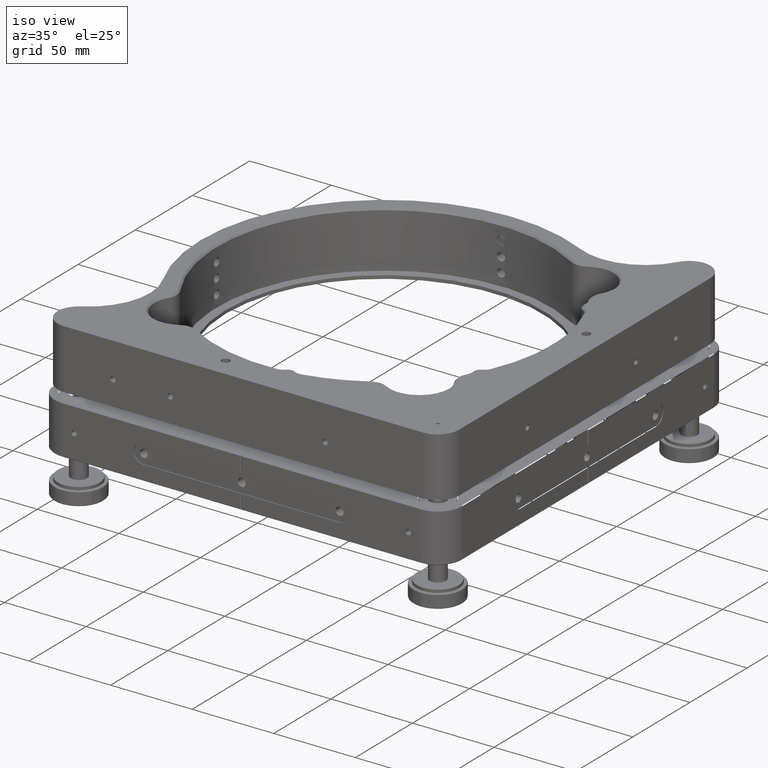
[diagram: clean part render]
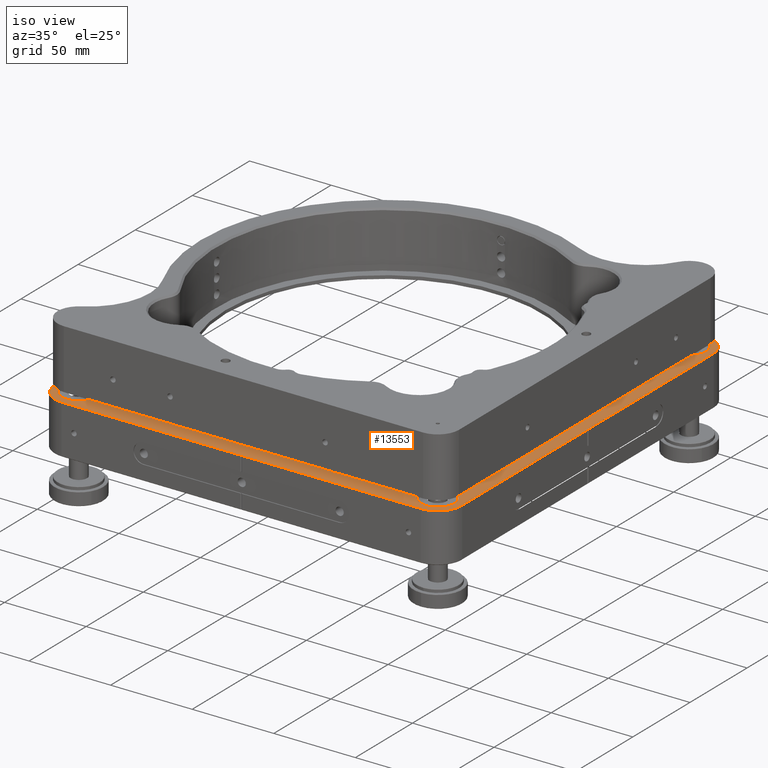
[diagram: same view with one face highlighted and labeled with its STEP entity id]
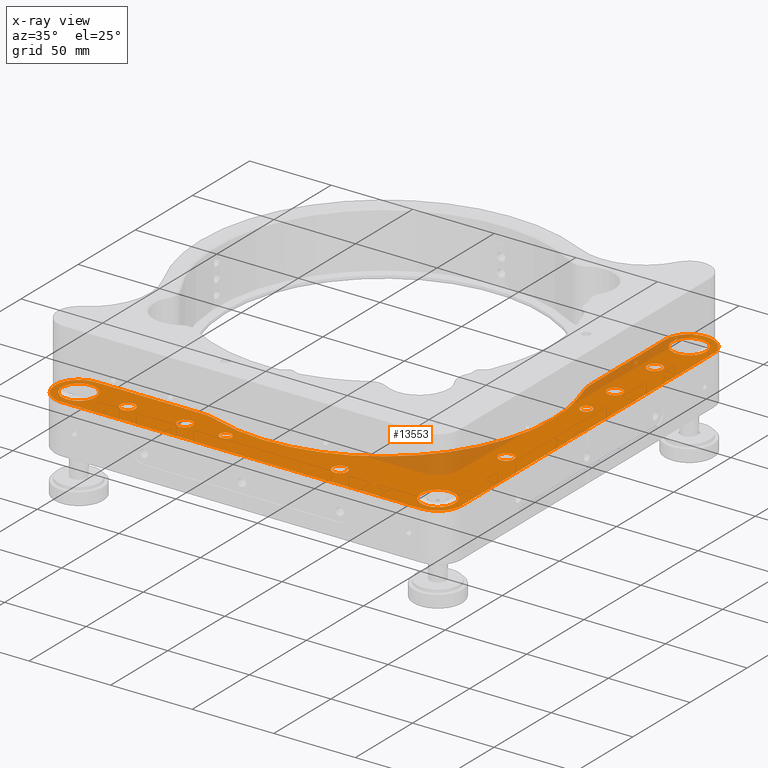
[diagram: x-ray of the same camera — body ghosted, the highlighted face saturated]
A machine part, iso view. The second image highlights one B-rep face of the part: STEP entity #13553.
The next image is the same camera in x-ray: the body ghosted, the highlighted face saturated — about 14% of this face is hidden behind the body in this view.
In plain terms, the highlighted planar face has unit normal (-0, 0, 1).
Its self-contained STEP definition (entity closure, byte-faithful):
#1 = VERTEX_POINT ( 'NONE', #10504 ) ;
#36 = AXIS2_PLACEMENT_3D ( 'NONE', #773, #5155, #4075 ) ;
#38 = AXIS2_PLACEMENT_3D ( 'NONE', #9250, #690, #9456 ) ;
#65 = CARTESIAN_POINT ( 'NONE',  ( -15.00000000000000000, 15.00000000000001421, 15.00000000000000000 ) ) ;
#98 = VERTEX_POINT ( 'NONE', #1162 ) ;
#112 = EDGE_CURVE ( 'NONE', #9079, #1286, #7286, .T. ) ;
#164 = AXIS2_PLACEMENT_3D ( 'NONE', #2809, #4087, #13732 ) ;
#175 = ORIENTED_EDGE ( 'NONE', *, *, #112, .F. ) ;
#194 = AXIS2_PLACEMENT_3D ( 'NONE', #4372, #7676, #2225 ) ;
#219 = EDGE_CURVE ( 'NONE', #9904, #9204, #5491, .T. ) ;
#262 = ORIENTED_EDGE ( 'NONE', *, *, #13666, .T. ) ;
#342 = VERTEX_POINT ( 'NONE', #941 ) ;
#420 = CIRCLE ( 'NONE', #1108, 4.500000000000003553 ) ;
#427 = CARTESIAN_POINT ( 'NONE',  ( -235.0000000000000000, 15.00000000000000000, 15.00000000000000000 ) ) ;
#501 = DIRECTION ( 'NONE',  ( 1.000000000000000000, 0.000000000000000000, 0.000000000000000000 ) ) ;
#514 = EDGE_CURVE ( 'NONE', #6846, #11797, #11297, .T. ) ;
#520 = VECTOR ( 'NONE', #13545, 1000.000000000000000 ) ;
#528 = CARTESIAN_POINT ( 'NONE',  ( -125.2000000000000313, 0.2999999999999669598, 15.00000000000000000 ) ) ;
#530 = CIRCLE ( 'NONE', #8791, 14.70000000000003304 ) ;
#536 = CIRCLE ( 'NONE', #12202, 14.70000000000003304 ) ;
#584 = DIRECTION ( 'NONE',  ( 0.000000000000000000, -0.000000000000000000, 1.000000000000000000 ) ) ;
#671 = DIRECTION ( 'NONE',  ( -0.000000000000000000, 0.000000000000000000, -1.000000000000000000 ) ) ;
#690 = DIRECTION ( 'NONE',  ( -0.000000000000000000, 0.000000000000000000, 1.000000000000000000 ) ) ;
#708 = CARTESIAN_POINT ( 'NONE',  ( -235.0000000000000000, 15.00000000000000000, 15.00000000000000000 ) ) ;
#726 = ORIENTED_EDGE ( 'NONE', *, *, #4829, .T. ) ;
#773 = CARTESIAN_POINT ( 'NONE',  ( -205.0000000000000000, 14.99999999999998579, 15.00000000000000000 ) ) ;
#825 = FACE_BOUND ( 'NONE', #12860, .T. ) ;
#872 = ORIENTED_EDGE ( 'NONE', *, *, #2712, .F. ) ;
#941 = CARTESIAN_POINT ( 'NONE',  ( -15.00000000000002842, 245.2500000000000284, 15.00000000000000000 ) ) ;
#1035 = CARTESIAN_POINT ( 'NONE',  ( -125.0000000000000000, 125.0000000000000000, 15.00000000000000000 ) ) ;
#1108 = AXIS2_PLACEMENT_3D ( 'NONE', #7271, #671, #1964 ) ;
#1153 = DIRECTION ( 'NONE',  ( 0.000000000000000000, 0.000000000000000000, -1.000000000000000000 ) ) ;
#1162 = CARTESIAN_POINT ( 'NONE',  ( -125.0000000000000000, 0.5000000000000004441, 15.00000000000000000 ) ) ;
#1169 = ORIENTED_EDGE ( 'NONE', *, *, #8422, .T. ) ;
#1190 = CARTESIAN_POINT ( 'NONE',  ( -235.0000000000000000, 0.2999999999999669598, 15.00000000000000000 ) ) ;
#1209 = AXIS2_PLACEMENT_3D ( 'NONE', #3326, #5474, #5616 ) ;
#1286 = VERTEX_POINT ( 'NONE', #1813 ) ;
#1289 = CIRCLE ( 'NONE', #7949, 10.24999999999998224 ) ;
#1398 = DIRECTION ( 'NONE',  ( 3.854941057726235139E-16, -1.000000000000000000, 0.000000000000000000 ) ) ;
#1446 = ORIENTED_EDGE ( 'NONE', *, *, #9325, .F. ) ;
#1488 = DIRECTION ( 'NONE',  ( 1.000000000000000000, 0.000000000000000000, 0.000000000000000000 ) ) ;
#1522 = VECTOR ( 'NONE', #8090, 1000.000000000000000 ) ;
#1614 = EDGE_CURVE ( 'NONE', #6927, #7181, #536, .T. ) ;
#1672 = CARTESIAN_POINT ( 'NONE',  ( -15.00000000000000000, 170.0000000000000284, 15.00000000000000000 ) ) ;
#1688 = ORIENTED_EDGE ( 'NONE', *, *, #13851, .F. ) ;
#1698 = CARTESIAN_POINT ( 'NONE',  ( -0.2999999999999669598, 125.2000000000001165, 15.00000000000000000 ) ) ;
#1763 = VECTOR ( 'NONE', #2845, 1000.000000000000000 ) ;
#1813 = CARTESIAN_POINT ( 'NONE',  ( -141.5000000000000284, 15.00000000000001421, 15.00000000000000000 ) ) ;
#1816 = EDGE_CURVE ( 'NONE', #12740, #4894, #2264, .T. ) ;
#1840 = EDGE_CURVE ( 'NONE', #1286, #9079, #5931, .T. ) ;
#1853 = DIRECTION ( 'NONE',  ( 0.000000000000000000, -0.000000000000000000, 1.000000000000000000 ) ) ;
#1913 = ORIENTED_EDGE ( 'NONE', *, *, #1816, .F. ) ;
#1952 = AXIS2_PLACEMENT_3D ( 'NONE', #1035, #7794, #2339 ) ;
#1964 = DIRECTION ( 'NONE',  ( 1.000000000000000000, 0.000000000000000000, 0.000000000000000000 ) ) ;
#1967 = AXIS2_PLACEMENT_3D ( 'NONE', #11686, #1853, #4135 ) ;
#1971 = ORIENTED_EDGE ( 'NONE', *, *, #2782, .T. ) ;
#2022 = CARTESIAN_POINT ( 'NONE',  ( -235.0000000000000000, 15.00000000000000000, 15.00000000000000000 ) ) ;
#2028 = CARTESIAN_POINT ( 'NONE',  ( -205.0000000000000000, 14.99999999999998579, 15.00000000000000000 ) ) ;
#2076 = ORIENTED_EDGE ( 'NONE', *, *, #5215, .T. ) ;
#2126 = FACE_BOUND ( 'NONE', #8944, .T. ) ;
#2158 = DIRECTION ( 'NONE',  ( -0.000000000000000000, 0.000000000000000000, -1.000000000000000000 ) ) ;
#2203 = VECTOR ( 'NONE', #3918, 1000.000000000000114 ) ;
#2225 = DIRECTION ( 'NONE',  ( 1.000000000000000000, 0.000000000000000000, 0.000000000000000000 ) ) ;
#2233 = ORIENTED_EDGE ( 'NONE', *, *, #2930, .T. ) ;
#2248 = ORIENTED_EDGE ( 'NONE', *, *, #4968, .T. ) ;
#2251 = EDGE_CURVE ( 'NONE', #6331, #5461, #13276, .T. ) ;
#2264 = CIRCLE ( 'NONE', #194, 3.499999999999996003 ) ;
#2339 = DIRECTION ( 'NONE',  ( 1.000000000000000000, 5.373780370886529239E-15, 0.000000000000000000 ) ) ;
#2368 = CARTESIAN_POINT ( 'NONE',  ( -124.5000000000000284, 1.387778780781445676E-14, 15.00000000000000000 ) ) ;
#2388 = CARTESIAN_POINT ( 'NONE',  ( -0.2999999999999669598, 124.8000000000000398, 15.00000000000000000 ) ) ;
#2394 = CARTESIAN_POINT ( 'NONE',  ( -19.50000000000000000, 75.00000000000004263, 15.00000000000000000 ) ) ;
#2503 = AXIS2_PLACEMENT_3D ( 'NONE', #11482, #10407, #7091 ) ;
#2515 = DIRECTION ( 'NONE',  ( -1.692413147294448928E-16, 1.000000000000000000, 0.000000000000000000 ) ) ;
#2569 = VERTEX_POINT ( 'NONE', #2388 ) ;
#2611 = VERTEX_POINT ( 'NONE', #9143 ) ;
#2648 = CIRCLE ( 'NONE', #8844, 4.500000000000003553 ) ;
#2712 = EDGE_CURVE ( 'NONE', #2611, #3013, #2648, .T. ) ;
#2775 = CARTESIAN_POINT ( 'NONE',  ( -125.0000000000000000, 125.0000000000000000, 15.00000000000000000 ) ) ;
#2782 = EDGE_CURVE ( 'NONE', #98, #1, #5446, .T. ) ;
#2791 = CARTESIAN_POINT ( 'NONE',  ( -0.2999999999999669598, 235.0000000000000000, 15.00000000000000000 ) ) ;
#2809 = CARTESIAN_POINT ( 'NONE',  ( -15.00000000000000000, 75.00000000000004263, 15.00000000000000000 ) ) ;
#2828 = LINE ( 'NONE', #9367, #520 ) ;
#2845 = DIRECTION ( 'NONE',  ( 1.000000000000000000, 0.000000000000000000, 0.000000000000000000 ) ) ;
#2870 = VERTEX_POINT ( 'NONE', #7601 ) ;
#2918 = EDGE_CURVE ( 'NONE', #342, #8302, #1289, .T. ) ;
#2930 = EDGE_CURVE ( 'NONE', #12735, #7168, #3594, .T. ) ;
#2992 = CARTESIAN_POINT ( 'NONE',  ( -245.2499999999999716, 15.00000000000000000, 15.00000000000000000 ) ) ;
#2997 = CARTESIAN_POINT ( 'NONE',  ( -235.0000000000000000, 29.70000000000003126, 15.00000000000000000 ) ) ;
#3009 = DIRECTION ( 'NONE',  ( 1.000000000000000000, 0.000000000000000000, 0.000000000000000000 ) ) ;
#3013 = VERTEX_POINT ( 'NONE', #11670 ) ;
#3018 = EDGE_LOOP ( 'NONE', ( #10762, #7924 ) ) ;
#3071 = DIRECTION ( 'NONE',  ( -0.000000000000000000, 0.000000000000000000, 1.000000000000000000 ) ) ;
#3194 = ORIENTED_EDGE ( 'NONE', *, *, #7048, .T. ) ;
#3196 = DIRECTION ( 'NONE',  ( 1.000000000000000000, 0.000000000000000000, 0.000000000000000000 ) ) ;
#3199 = EDGE_CURVE ( 'NONE', #3989, #5252, #530, .T. ) ;
#3251 = ORIENTED_EDGE ( 'NONE', *, *, #8040, .T. ) ;
#3326 = CARTESIAN_POINT ( 'NONE',  ( 0.000000000000000000, 170.4312667664021888, 15.00000000000000000 ) ) ;
#3507 = CIRCLE ( 'NONE', #38, 3.499999999999996003 ) ;
#3511 = DIRECTION ( 'NONE',  ( 0.000000000000000000, 0.000000000000000000, 1.000000000000000000 ) ) ;
#3590 = CARTESIAN_POINT ( 'NONE',  ( -1.387778780781445676E-14, 124.5000000000000853, 15.00000000000000000 ) ) ;
#3594 = CIRCLE ( 'NONE', #9309, 10.24999999999998224 ) ;
#3682 = DIRECTION ( 'NONE',  ( -0.000000000000000000, 0.000000000000000000, 1.000000000000000000 ) ) ;
#3705 = CARTESIAN_POINT ( 'NONE',  ( -0.2999999999999669598, 124.5000000000000853, 15.00000000000000000 ) ) ;
#3727 = DIRECTION ( 'NONE',  ( -0.000000000000000000, 0.000000000000000000, 1.000000000000000000 ) ) ;
#3734 = DIRECTION ( 'NONE',  ( -0.000000000000000000, 0.000000000000000000, 1.000000000000000000 ) ) ;
#3773 = CARTESIAN_POINT ( 'NONE',  ( -15.00000000000001421, 249.7000000000000455, 15.00000000000000000 ) ) ;
#3786 = ORIENTED_EDGE ( 'NONE', *, *, #11148, .F. ) ;
#3879 = ORIENTED_EDGE ( 'NONE', *, *, #12680, .F. ) ;
#3904 = CIRCLE ( 'NONE', #11925, 4.500000000000003553 ) ;
#3917 = EDGE_CURVE ( 'NONE', #5321, #5322, #13631, .T. ) ;
#3918 = DIRECTION ( 'NONE',  ( -0.7071067811865434649, -0.7071067811865515695, 0.000000000000000000 ) ) ;
#3981 = DIRECTION ( 'NONE',  ( 0.7071067811865513475, 0.7071067811865436870, 0.000000000000000000 ) ) ;
#3989 = VERTEX_POINT ( 'NONE', #10570 ) ;
#4009 = CIRCLE ( 'NONE', #13880, 14.70000000000003304 ) ;
#4075 = DIRECTION ( 'NONE',  ( 1.000000000000000000, 0.000000000000000000, 0.000000000000000000 ) ) ;
#4087 = DIRECTION ( 'NONE',  ( -0.000000000000000000, 0.000000000000000000, 1.000000000000000000 ) ) ;
#4121 = DIRECTION ( 'NONE',  ( -0.000000000000000000, 0.000000000000000000, 1.000000000000000000 ) ) ;
#4127 = FACE_BOUND ( 'NONE', #13064, .T. ) ;
#4135 = DIRECTION ( 'NONE',  ( 3.854941057726235139E-16, -1.000000000000000000, 0.000000000000000000 ) ) ;
#4200 = VERTEX_POINT ( 'NONE', #2997 ) ;
#4219 = CARTESIAN_POINT ( 'NONE',  ( -165.4999999999999716, 14.99999999999998579, 15.00000000000000000 ) ) ;
#4253 = VECTOR ( 'NONE', #13711, 1000.000000000000000 ) ;
#4293 = EDGE_LOOP ( 'NONE', ( #2248, #3194 ) ) ;
#4362 = CIRCLE ( 'NONE', #11476, 10.24999999999998224 ) ;
#4372 = CARTESIAN_POINT ( 'NONE',  ( -15.00000000000000000, 145.0000000000000568, 15.00000000000000000 ) ) ;
#4456 = LINE ( 'NONE', #7543, #6621 ) ;
#4470 = EDGE_CURVE ( 'NONE', #9091, #2569, #12482, .T. ) ;
#4554 = AXIS2_PLACEMENT_3D ( 'NONE', #6452, #2158, #11707 ) ;
#4565 = CARTESIAN_POINT ( 'NONE',  ( -29.70000000000000284, 170.4312667664021888, 15.00000000000000000 ) ) ;
#4593 = EDGE_CURVE ( 'NONE', #6395, #9091, #13764, .T. ) ;
#4636 = CARTESIAN_POINT ( 'NONE',  ( -170.4312667664022172, 29.70000000000003126, 15.00000000000000000 ) ) ;
#4684 = ORIENTED_EDGE ( 'NONE', *, *, #4593, .F. ) ;
#4726 = VECTOR ( 'NONE', #4729, 1000.000000000000000 ) ;
#4729 = DIRECTION ( 'NONE',  ( 0.7071067811865495711, -0.7071067811865454633, 0.000000000000000000 ) ) ;
#4826 = ORIENTED_EDGE ( 'NONE', *, *, #3917, .T. ) ;
#4829 = EDGE_CURVE ( 'NONE', #5252, #2569, #5855, .T. ) ;
#4894 = VERTEX_POINT ( 'NONE', #7390 ) ;
#4922 = CARTESIAN_POINT ( 'NONE',  ( -15.00000000000001421, 235.0000000000000000, 15.00000000000000000 ) ) ;
#4928 = ORIENTED_EDGE ( 'NONE', *, *, #12144, .T. ) ;
#4968 = EDGE_CURVE ( 'NONE', #2870, #10558, #10293, .T. ) ;
#5011 = DIRECTION ( 'NONE',  ( 1.000000000000000000, 0.000000000000000000, 0.000000000000000000 ) ) ;
#5055 = LINE ( 'NONE', #9666, #9319 ) ;
#5067 = EDGE_LOOP ( 'NONE', ( #10845, #3786 ) ) ;
#5091 = VECTOR ( 'NONE', #6855, 1000.000000000000000 ) ;
#5118 = EDGE_CURVE ( 'NONE', #10360, #5495, #5456, .T. ) ;
#5155 = DIRECTION ( 'NONE',  ( -0.000000000000000000, 0.000000000000000000, -1.000000000000000000 ) ) ;
#5207 = FACE_BOUND ( 'NONE', #11292, .T. ) ;
#5215 = EDGE_CURVE ( 'NONE', #4200, #5321, #11434, .T. ) ;
#5227 = AXIS2_PLACEMENT_3D ( 'NONE', #427, #3734, #5011 ) ;
#5252 = VERTEX_POINT ( 'NONE', #10477 ) ;
#5319 = DIRECTION ( 'NONE',  ( 1.000000000000000000, 0.000000000000000000, 0.000000000000000000 ) ) ;
#5321 = VERTEX_POINT ( 'NONE', #7436 ) ;
#5322 = VERTEX_POINT ( 'NONE', #1190 ) ;
#5333 = CARTESIAN_POINT ( 'NONE',  ( -29.70000000000003126, 235.0000000000000000, 15.00000000000000000 ) ) ;
#5351 = PLANE ( 'NONE',  #11300 ) ;
#5405 = CARTESIAN_POINT ( 'NONE',  ( -224.7500000000000000, 15.00000000000000178, 15.00000000000000000 ) ) ;
#5446 = LINE ( 'NONE', #2368, #6769 ) ;
#5456 = CIRCLE ( 'NONE', #7291, 4.500000000000003553 ) ;
#5461 = VERTEX_POINT ( 'NONE', #10247 ) ;
#5474 = DIRECTION ( 'NONE',  ( -0.000000000000000000, 0.000000000000000000, 1.000000000000000000 ) ) ;
#5491 = CIRCLE ( 'NONE', #9370, 4.500000000000003553 ) ;
#5494 = LINE ( 'NONE', #4565, #5091 ) ;
#5495 = VERTEX_POINT ( 'NONE', #10315 ) ;
#5519 = AXIS2_PLACEMENT_3D ( 'NONE', #10048, #3511, #1488 ) ;
#5527 = DIRECTION ( 'NONE',  ( 0.000000000000000000, 0.000000000000000000, -1.000000000000000000 ) ) ;
#5554 = VERTEX_POINT ( 'NONE', #4636 ) ;
#5577 = CIRCLE ( 'NONE', #11074, 10.24999999999999112 ) ;
#5616 = DIRECTION ( 'NONE',  ( 1.000000000000000000, 0.000000000000000000, 0.000000000000000000 ) ) ;
#5635 = CIRCLE ( 'NONE', #14117, 29.70000000000003126 ) ;
#5643 = VERTEX_POINT ( 'NONE', #8299 ) ;
#5721 = ORIENTED_EDGE ( 'NONE', *, *, #11548, .T. ) ;
#5745 = CARTESIAN_POINT ( 'NONE',  ( -75.00000000000000000, 15.00000000000001421, 15.00000000000000000 ) ) ;
#5841 = CIRCLE ( 'NONE', #11812, 103.2999999999999687 ) ;
#5855 = LINE ( 'NONE', #3705, #1522 ) ;
#5931 = CIRCLE ( 'NONE', #2503, 3.500000000000003109 ) ;
#5932 = CARTESIAN_POINT ( 'NONE',  ( -27.91353383458650228, 160.2860891501454432, 15.00000000000000000 ) ) ;
#5934 = DIRECTION ( 'NONE',  ( -0.000000000000000000, 0.000000000000000000, 1.000000000000000000 ) ) ;
#5960 = CARTESIAN_POINT ( 'NONE',  ( -15.00000000000001421, 235.0000000000000000, 15.00000000000000000 ) ) ;
#5990 = EDGE_LOOP ( 'NONE', ( #1913, #3879 ) ) ;
#5992 = DIRECTION ( 'NONE',  ( -1.692413147294448928E-16, 1.000000000000000000, 0.000000000000000000 ) ) ;
#6062 = CARTESIAN_POINT ( 'NONE',  ( -15.00000000000002665, 235.0000000000000284, 15.00000000000000000 ) ) ;
#6067 = LINE ( 'NONE', #10458, #1763 ) ;
#6069 = ORIENTED_EDGE ( 'NONE', *, *, #12490, .T. ) ;
#6084 = FACE_BOUND ( 'NONE', #5990, .T. ) ;
#6194 = ORIENTED_EDGE ( 'NONE', *, *, #1614, .T. ) ;
#6266 = ORIENTED_EDGE ( 'NONE', *, *, #7575, .T. ) ;
#6331 = VERTEX_POINT ( 'NONE', #8539 ) ;
#6358 = ORIENTED_EDGE ( 'NONE', *, *, #8088, .T. ) ;
#6387 = DIRECTION ( 'NONE',  ( -1.000000000000000000, 0.000000000000000000, 0.000000000000000000 ) ) ;
#6393 = DIRECTION ( 'NONE',  ( -0.000000000000000000, 0.000000000000000000, -1.000000000000000000 ) ) ;
#6395 = VERTEX_POINT ( 'NONE', #1698 ) ;
#6440 = EDGE_CURVE ( 'NONE', #5322, #6957, #6067, .T. ) ;
#6452 = CARTESIAN_POINT ( 'NONE',  ( -169.9999999999999716, 14.99999999999998579, 15.00000000000000000 ) ) ;
#6490 = EDGE_CURVE ( 'NONE', #3013, #2611, #10911, .T. ) ;
#6544 = ORIENTED_EDGE ( 'NONE', *, *, #7688, .T. ) ;
#6591 = CARTESIAN_POINT ( 'NONE',  ( -21.70000000000002416, 125.0000000000000000, 15.00000000000000000 ) ) ;
#6621 = VECTOR ( 'NONE', #8848, 1000.000000000000000 ) ;
#6669 = DIRECTION ( 'NONE',  ( -1.000000000000000000, 0.000000000000000000, 0.000000000000000000 ) ) ;
#6769 = VECTOR ( 'NONE', #14214, 1000.000000000000000 ) ;
#6846 = VERTEX_POINT ( 'NONE', #7132 ) ;
#6855 = DIRECTION ( 'NONE',  ( 3.257677454484833774E-16, -1.000000000000000000, 0.000000000000000000 ) ) ;
#6856 = CARTESIAN_POINT ( 'NONE',  ( -4.750000000000007994, 15.00000000000001421, 15.00000000000000000 ) ) ;
#6867 = CARTESIAN_POINT ( 'NONE',  ( -160.2860891501454716, 27.91353383458650228, 15.00000000000000000 ) ) ;
#6877 = DIRECTION ( 'NONE',  ( -1.000000000000000000, 0.000000000000000000, 0.000000000000000000 ) ) ;
#6909 = VERTEX_POINT ( 'NONE', #6856 ) ;
#6927 = VERTEX_POINT ( 'NONE', #3773 ) ;
#6944 = CIRCLE ( 'NONE', #11762, 4.500000000000003553 ) ;
#6957 = VERTEX_POINT ( 'NONE', #528 ) ;
#7048 = EDGE_CURVE ( 'NONE', #10558, #2870, #420, .T. ) ;
#7071 = AXIS2_PLACEMENT_3D ( 'NONE', #1672, #584, #1398 ) ;
#7091 = DIRECTION ( 'NONE',  ( 1.000000000000000000, 0.000000000000000000, 0.000000000000000000 ) ) ;
#7098 = ORIENTED_EDGE ( 'NONE', *, *, #5118, .T. ) ;
#7132 = CARTESIAN_POINT ( 'NONE',  ( -29.70000000000000284, 170.4312667664021888, 15.00000000000000000 ) ) ;
#7168 = VERTEX_POINT ( 'NONE', #5405 ) ;
#7181 = VERTEX_POINT ( 'NONE', #5333 ) ;
#7271 = CARTESIAN_POINT ( 'NONE',  ( -169.9999999999999716, 14.99999999999998579, 15.00000000000000000 ) ) ;
#7286 = CIRCLE ( 'NONE', #12796, 3.500000000000003109 ) ;
#7288 = ORIENTED_EDGE ( 'NONE', *, *, #514, .T. ) ;
#7291 = AXIS2_PLACEMENT_3D ( 'NONE', #12062, #5527, #6669 ) ;
#7300 = DIRECTION ( 'NONE',  ( 1.000000000000000000, 0.000000000000000000, 0.000000000000000000 ) ) ;
#7352 = CARTESIAN_POINT ( 'NONE',  ( -15.00000000000000000, 75.00000000000004263, 15.00000000000000000 ) ) ;
#7361 = CARTESIAN_POINT ( 'NONE',  ( -1.387778780781445676E-14, 125.5000000000000568, 15.00000000000000000 ) ) ;
#7390 = CARTESIAN_POINT ( 'NONE',  ( -18.49999999999999645, 145.0000000000000568, 15.00000000000000000 ) ) ;
#7431 = FACE_BOUND ( 'NONE', #8034, .T. ) ;
#7436 = CARTESIAN_POINT ( 'NONE',  ( -249.7000000000000455, 15.00000000000001421, 15.00000000000000000 ) ) ;
#7543 = CARTESIAN_POINT ( 'NONE',  ( -235.0000000000000000, 29.70000000000003126, 15.00000000000000000 ) ) ;
#7575 = EDGE_CURVE ( 'NONE', #9508, #8476, #5841, .T. ) ;
#7579 = FACE_BOUND ( 'NONE', #5067, .T. ) ;
#7601 = CARTESIAN_POINT ( 'NONE',  ( -174.5000000000000000, 14.99999999999998579, 15.00000000000000000 ) ) ;
#7676 = DIRECTION ( 'NONE',  ( -0.000000000000000000, 0.000000000000000000, 1.000000000000000000 ) ) ;
#7688 = EDGE_CURVE ( 'NONE', #11797, #9508, #7922, .T. ) ;
#7794 = DIRECTION ( 'NONE',  ( 0.000000000000000000, -0.000000000000000000, -1.000000000000000000 ) ) ;
#7922 = CIRCLE ( 'NONE', #1952, 103.2999999999999687 ) ;
#7924 = ORIENTED_EDGE ( 'NONE', *, *, #2251, .F. ) ;
#7949 = AXIS2_PLACEMENT_3D ( 'NONE', #10520, #3727, #2515 ) ;
#8034 = EDGE_LOOP ( 'NONE', ( #2233, #4928 ) ) ;
#8040 = EDGE_CURVE ( 'NONE', #6395, #11510, #12630, .T. ) ;
#8044 = CARTESIAN_POINT ( 'NONE',  ( -235.0000000000000000, 15.00000000000000000, 15.00000000000000000 ) ) ;
#8071 = CIRCLE ( 'NONE', #11032, 10.24999999999998224 ) ;
#8088 = EDGE_CURVE ( 'NONE', #8476, #5554, #5635, .T. ) ;
#8090 = DIRECTION ( 'NONE',  ( -5.551115123125782702E-17, 1.000000000000000000, 0.000000000000000000 ) ) ;
#8101 = DIRECTION ( 'NONE',  ( 3.854941057726235139E-16, -1.000000000000000000, 0.000000000000000000 ) ) ;
#8118 = DIRECTION ( 'NONE',  ( -1.000000000000000000, 0.000000000000000000, 0.000000000000000000 ) ) ;
#8166 = EDGE_CURVE ( 'NONE', #5461, #6331, #8621, .T. ) ;
#8272 = ORIENTED_EDGE ( 'NONE', *, *, #10273, .T. ) ;
#8283 = CIRCLE ( 'NONE', #5519, 10.24999999999999112 ) ;
#8299 = CARTESIAN_POINT ( 'NONE',  ( -25.24999999999999289, 15.00000000000001421, 15.00000000000000000 ) ) ;
#8302 = VERTEX_POINT ( 'NONE', #10956 ) ;
#8422 = EDGE_CURVE ( 'NONE', #11510, #6927, #4009, .T. ) ;
#8476 = VERTEX_POINT ( 'NONE', #6867 ) ;
#8491 = EDGE_LOOP ( 'NONE', ( #11168, #1688 ) ) ;
#8518 = DIRECTION ( 'NONE',  ( -3.854941057726235139E-16, 1.000000000000000000, 0.000000000000000000 ) ) ;
#8539 = CARTESIAN_POINT ( 'NONE',  ( -10.49999999999999289, 170.0000000000000284, 15.00000000000000000 ) ) ;
#8583 = EDGE_CURVE ( 'NONE', #6957, #98, #5055, .T. ) ;
#8617 = DIRECTION ( 'NONE',  ( 0.000000000000000000, -0.000000000000000000, 1.000000000000000000 ) ) ;
#8621 = CIRCLE ( 'NONE', #1967, 4.500000000000003553 ) ;
#8778 = ORIENTED_EDGE ( 'NONE', *, *, #8583, .T. ) ;
#8791 = AXIS2_PLACEMENT_3D ( 'NONE', #13041, #11875, #3196 ) ;
#8809 = AXIS2_PLACEMENT_3D ( 'NONE', #708, #12849, #3009 ) ;
#8844 = AXIS2_PLACEMENT_3D ( 'NONE', #11696, #8617, #13001 ) ;
#8848 = DIRECTION ( 'NONE',  ( -1.000000000000000000, 0.000000000000000000, -0.000000000000000000 ) ) ;
#8944 = EDGE_LOOP ( 'NONE', ( #5721, #6069 ) ) ;
#8959 = CARTESIAN_POINT ( 'NONE',  ( -209.5000000000000000, 14.99999999999998579, 15.00000000000000000 ) ) ;
#9079 = VERTEX_POINT ( 'NONE', #10443 ) ;
#9091 = VERTEX_POINT ( 'NONE', #12666 ) ;
#9143 = CARTESIAN_POINT ( 'NONE',  ( -10.49999999999999289, 205.0000000000000568, 15.00000000000000000 ) ) ;
#9204 = VERTEX_POINT ( 'NONE', #2394 ) ;
#9250 = CARTESIAN_POINT ( 'NONE',  ( -15.00000000000000000, 145.0000000000000568, 15.00000000000000000 ) ) ;
#9309 = AXIS2_PLACEMENT_3D ( 'NONE', #8044, #12489, #6877 ) ;
#9310 = DIRECTION ( 'NONE',  ( 1.000000000000000000, 0.000000000000000000, 0.000000000000000000 ) ) ;
#9319 = VECTOR ( 'NONE', #3981, 1000.000000000000000 ) ;
#9325 = EDGE_CURVE ( 'NONE', #9204, #9904, #10264, .T. ) ;
#9367 = CARTESIAN_POINT ( 'NONE',  ( -15.00000000000000000, 0.2999999999999669598, 15.00000000000000000 ) ) ;
#9370 = AXIS2_PLACEMENT_3D ( 'NONE', #7352, #4121, #8518 ) ;
#9456 = DIRECTION ( 'NONE',  ( 1.000000000000000000, 0.000000000000000000, 0.000000000000000000 ) ) ;
#9493 = ORIENTED_EDGE ( 'NONE', *, *, #1840, .F. ) ;
#9508 = VERTEX_POINT ( 'NONE', #6591 ) ;
#9597 = FACE_BOUND ( 'NONE', #3018, .T. ) ;
#9666 = CARTESIAN_POINT ( 'NONE',  ( -125.5000000000000000, 1.387778780781445676E-14, 15.00000000000000000 ) ) ;
#9741 = DIRECTION ( 'NONE',  ( -0.000000000000000000, 0.000000000000000000, 1.000000000000000000 ) ) ;
#9870 = VERTEX_POINT ( 'NONE', #8959 ) ;
#9904 = VERTEX_POINT ( 'NONE', #13116 ) ;
#9921 = ORIENTED_EDGE ( 'NONE', *, *, #6440, .T. ) ;
#9926 = EDGE_LOOP ( 'NONE', ( #1971, #10095, #13651, #726, #11245, #4684, #3251, #1169, #6194, #262, #7288, #6544, #6266, #6358, #8272, #2076, #4826, #9921, #8778 ) ) ;
#10048 = CARTESIAN_POINT ( 'NONE',  ( -15.00000000000000000, 15.00000000000001421, 15.00000000000000000 ) ) ;
#10095 = ORIENTED_EDGE ( 'NONE', *, *, #13709, .T. ) ;
#10211 = CARTESIAN_POINT ( 'NONE',  ( -70.50000000000000000, 15.00000000000001421, 15.00000000000000000 ) ) ;
#10247 = CARTESIAN_POINT ( 'NONE',  ( -19.50000000000000355, 170.0000000000000284, 15.00000000000000000 ) ) ;
#10264 = CIRCLE ( 'NONE', #164, 4.500000000000003553 ) ;
#10273 = EDGE_CURVE ( 'NONE', #5554, #4200, #4456, .T. ) ;
#10275 = DIRECTION ( 'NONE',  ( 0.000000000000000000, 0.000000000000000000, -1.000000000000000000 ) ) ;
#10290 = ORIENTED_EDGE ( 'NONE', *, *, #14069, .T. ) ;
#10293 = CIRCLE ( 'NONE', #4554, 4.500000000000003553 ) ;
#10315 = CARTESIAN_POINT ( 'NONE',  ( -79.50000000000000000, 15.00000000000001421, 15.00000000000000000 ) ) ;
#10351 = DIRECTION ( 'NONE',  ( -0.000000000000000000, 0.000000000000000000, 1.000000000000000000 ) ) ;
#10360 = VERTEX_POINT ( 'NONE', #10211 ) ;
#10407 = DIRECTION ( 'NONE',  ( -0.000000000000000000, 0.000000000000000000, 1.000000000000000000 ) ) ;
#10443 = CARTESIAN_POINT ( 'NONE',  ( -148.5000000000000284, 15.00000000000001421, 15.00000000000000000 ) ) ;
#10449 = ORIENTED_EDGE ( 'NONE', *, *, #219, .F. ) ;
#10454 = DIRECTION ( 'NONE',  ( 0.000000000000000000, -0.000000000000000000, -1.000000000000000000 ) ) ;
#10458 = CARTESIAN_POINT ( 'NONE',  ( -125.5000000000000000, 0.2999999999999669598, 15.00000000000000000 ) ) ;
#10477 = CARTESIAN_POINT ( 'NONE',  ( -0.2999999999999669598, 15.00000000000001421, 15.00000000000000000 ) ) ;
#10504 = CARTESIAN_POINT ( 'NONE',  ( -124.7999999999999829, 0.2999999999999669598, 15.00000000000000000 ) ) ;
#10516 = DIRECTION ( 'NONE',  ( -0.000000000000000000, 0.000000000000000000, 1.000000000000000000 ) ) ;
#10520 = CARTESIAN_POINT ( 'NONE',  ( -15.00000000000002665, 235.0000000000000284, 15.00000000000000000 ) ) ;
#10558 = VERTEX_POINT ( 'NONE', #4219 ) ;
#10570 = CARTESIAN_POINT ( 'NONE',  ( -15.00000000000000000, 0.2999999999999808376, 15.00000000000000000 ) ) ;
#10762 = ORIENTED_EDGE ( 'NONE', *, *, #8166, .F. ) ;
#10765 = CARTESIAN_POINT ( 'NONE',  ( -0.2999999999999808376, 235.0000000000000000, 15.00000000000000000 ) ) ;
#10792 = CARTESIAN_POINT ( 'NONE',  ( -125.0000000000000000, 125.0000000000000000, 15.00000000000000000 ) ) ;
#10845 = ORIENTED_EDGE ( 'NONE', *, *, #2918, .F. ) ;
#10867 = FACE_BOUND ( 'NONE', #11513, .T. ) ;
#10911 = CIRCLE ( 'NONE', #14140, 4.500000000000003553 ) ;
#10956 = CARTESIAN_POINT ( 'NONE',  ( -15.00000000000002487, 224.7500000000000568, 15.00000000000000000 ) ) ;
#11032 = AXIS2_PLACEMENT_3D ( 'NONE', #2022, #1153, #6387 ) ;
#11074 = AXIS2_PLACEMENT_3D ( 'NONE', #65, #13292, #13220 ) ;
#11148 = EDGE_CURVE ( 'NONE', #8302, #342, #4362, .T. ) ;
#11168 = ORIENTED_EDGE ( 'NONE', *, *, #11799, .F. ) ;
#11245 = ORIENTED_EDGE ( 'NONE', *, *, #4470, .F. ) ;
#11292 = EDGE_LOOP ( 'NONE', ( #13822, #872 ) ) ;
#11297 = CIRCLE ( 'NONE', #1209, 29.70000000000003482 ) ;
#11300 = AXIS2_PLACEMENT_3D ( 'NONE', #10792, #9741, #14118 ) ;
#11404 = CARTESIAN_POINT ( 'NONE',  ( -11.50000000000000355, 145.0000000000000568, 15.00000000000000000 ) ) ;
#11428 = DIRECTION ( 'NONE',  ( 1.000000000000000000, 0.000000000000000000, 0.000000000000000000 ) ) ;
#11431 = CARTESIAN_POINT ( 'NONE',  ( -200.4999999999999716, 14.99999999999998579, 15.00000000000000000 ) ) ;
#11434 = CIRCLE ( 'NONE', #5227, 14.70000000000004547 ) ;
#11476 = AXIS2_PLACEMENT_3D ( 'NONE', #6062, #10516, #5992 ) ;
#11482 = CARTESIAN_POINT ( 'NONE',  ( -145.0000000000000284, 15.00000000000001421, 15.00000000000000000 ) ) ;
#11510 = VERTEX_POINT ( 'NONE', #10765 ) ;
#11513 = EDGE_LOOP ( 'NONE', ( #9493, #175 ) ) ;
#11548 = EDGE_CURVE ( 'NONE', #9870, #12875, #3904, .T. ) ;
#11670 = CARTESIAN_POINT ( 'NONE',  ( -19.50000000000000355, 205.0000000000000568, 15.00000000000000000 ) ) ;
#11686 = CARTESIAN_POINT ( 'NONE',  ( -15.00000000000000000, 170.0000000000000284, 15.00000000000000000 ) ) ;
#11696 = CARTESIAN_POINT ( 'NONE',  ( -15.00000000000000000, 205.0000000000000568, 15.00000000000000000 ) ) ;
#11707 = DIRECTION ( 'NONE',  ( 1.000000000000000000, 0.000000000000000000, 0.000000000000000000 ) ) ;
#11762 = AXIS2_PLACEMENT_3D ( 'NONE', #5745, #10275, #8118 ) ;
#11797 = VERTEX_POINT ( 'NONE', #5932 ) ;
#11799 = EDGE_CURVE ( 'NONE', #6909, #5643, #8283, .T. ) ;
#11812 = AXIS2_PLACEMENT_3D ( 'NONE', #2775, #10454, #13824 ) ;
#11813 = FACE_OUTER_BOUND ( 'NONE', #9926, .T. ) ;
#11875 = DIRECTION ( 'NONE',  ( -0.000000000000000000, 0.000000000000000000, 1.000000000000000000 ) ) ;
#11897 = CARTESIAN_POINT ( 'NONE',  ( -170.4312667664022172, 0.000000000000000000, 15.00000000000000000 ) ) ;
#11925 = AXIS2_PLACEMENT_3D ( 'NONE', #2028, #6393, #5319 ) ;
#12062 = CARTESIAN_POINT ( 'NONE',  ( -75.00000000000000000, 15.00000000000001421, 15.00000000000000000 ) ) ;
#12144 = EDGE_CURVE ( 'NONE', #7168, #12735, #8071, .T. ) ;
#12202 = AXIS2_PLACEMENT_3D ( 'NONE', #5960, #10351, #501 ) ;
#12482 = LINE ( 'NONE', #3590, #4726 ) ;
#12489 = DIRECTION ( 'NONE',  ( 0.000000000000000000, 0.000000000000000000, -1.000000000000000000 ) ) ;
#12490 = EDGE_CURVE ( 'NONE', #12875, #9870, #13120, .T. ) ;
#12630 = LINE ( 'NONE', #2791, #4253 ) ;
#12666 = CARTESIAN_POINT ( 'NONE',  ( -0.5000000000000004441, 125.0000000000000568, 15.00000000000000000 ) ) ;
#12680 = EDGE_CURVE ( 'NONE', #4894, #12740, #3507, .T. ) ;
#12735 = VERTEX_POINT ( 'NONE', #2992 ) ;
#12740 = VERTEX_POINT ( 'NONE', #11404 ) ;
#12796 = AXIS2_PLACEMENT_3D ( 'NONE', #13660, #3682, #11428 ) ;
#12849 = DIRECTION ( 'NONE',  ( -0.000000000000000000, 0.000000000000000000, 1.000000000000000000 ) ) ;
#12860 = EDGE_LOOP ( 'NONE', ( #1446, #10449 ) ) ;
#12875 = VERTEX_POINT ( 'NONE', #11431 ) ;
#13001 = DIRECTION ( 'NONE',  ( 3.854941057726235139E-16, -1.000000000000000000, 0.000000000000000000 ) ) ;
#13041 = CARTESIAN_POINT ( 'NONE',  ( -15.00000000000000000, 15.00000000000001421, 15.00000000000000000 ) ) ;
#13046 = FACE_BOUND ( 'NONE', #8491, .T. ) ;
#13064 = EDGE_LOOP ( 'NONE', ( #10290, #7098 ) ) ;
#13116 = CARTESIAN_POINT ( 'NONE',  ( -10.49999999999999822, 75.00000000000004263, 15.00000000000000000 ) ) ;
#13120 = CIRCLE ( 'NONE', #36, 4.500000000000003553 ) ;
#13220 = DIRECTION ( 'NONE',  ( 1.000000000000000000, 0.000000000000000000, 0.000000000000000000 ) ) ;
#13276 = CIRCLE ( 'NONE', #7071, 4.500000000000003553 ) ;
#13292 = DIRECTION ( 'NONE',  ( 0.000000000000000000, 0.000000000000000000, 1.000000000000000000 ) ) ;
#13545 = DIRECTION ( 'NONE',  ( 1.000000000000000000, 0.000000000000000000, 0.000000000000000000 ) ) ;
#13553 = ADVANCED_FACE ( 'NONE', ( #6084, #10867, #825, #5207, #9597, #7579, #13046, #2126, #13970, #4127, #7431, #11813 ), #5351, .T. ) ;
#13631 = CIRCLE ( 'NONE', #8809, 14.70000000000004547 ) ;
#13651 = ORIENTED_EDGE ( 'NONE', *, *, #3199, .T. ) ;
#13660 = CARTESIAN_POINT ( 'NONE',  ( -145.0000000000000284, 15.00000000000001421, 15.00000000000000000 ) ) ;
#13666 = EDGE_CURVE ( 'NONE', #7181, #6846, #5494, .T. ) ;
#13709 = EDGE_CURVE ( 'NONE', #1, #3989, #2828, .T. ) ;
#13711 = DIRECTION ( 'NONE',  ( -5.551115123125782702E-17, 1.000000000000000000, 0.000000000000000000 ) ) ;
#13732 = DIRECTION ( 'NONE',  ( -3.854941057726235139E-16, 1.000000000000000000, 0.000000000000000000 ) ) ;
#13763 = CARTESIAN_POINT ( 'NONE',  ( -15.00000000000000000, 205.0000000000000568, 15.00000000000000000 ) ) ;
#13764 = LINE ( 'NONE', #7361, #2203 ) ;
#13822 = ORIENTED_EDGE ( 'NONE', *, *, #6490, .F. ) ;
#13824 = DIRECTION ( 'NONE',  ( 1.000000000000000000, 0.000000000000000000, 0.000000000000000000 ) ) ;
#13851 = EDGE_CURVE ( 'NONE', #5643, #6909, #5577, .T. ) ;
#13880 = AXIS2_PLACEMENT_3D ( 'NONE', #4922, #5934, #9310 ) ;
#13898 = DIRECTION ( 'NONE',  ( 0.000000000000000000, -0.000000000000000000, 1.000000000000000000 ) ) ;
#13970 = FACE_BOUND ( 'NONE', #4293, .T. ) ;
#14069 = EDGE_CURVE ( 'NONE', #5495, #10360, #6944, .T. ) ;
#14117 = AXIS2_PLACEMENT_3D ( 'NONE', #11897, #3071, #7300 ) ;
#14118 = DIRECTION ( 'NONE',  ( 1.000000000000000000, 0.000000000000000000, 0.000000000000000000 ) ) ;
#14140 = AXIS2_PLACEMENT_3D ( 'NONE', #13763, #13898, #8101 ) ;
#14214 = DIRECTION ( 'NONE',  ( 0.7071067811865456854, -0.7071067811865493491, -0.000000000000000000 ) ) ;